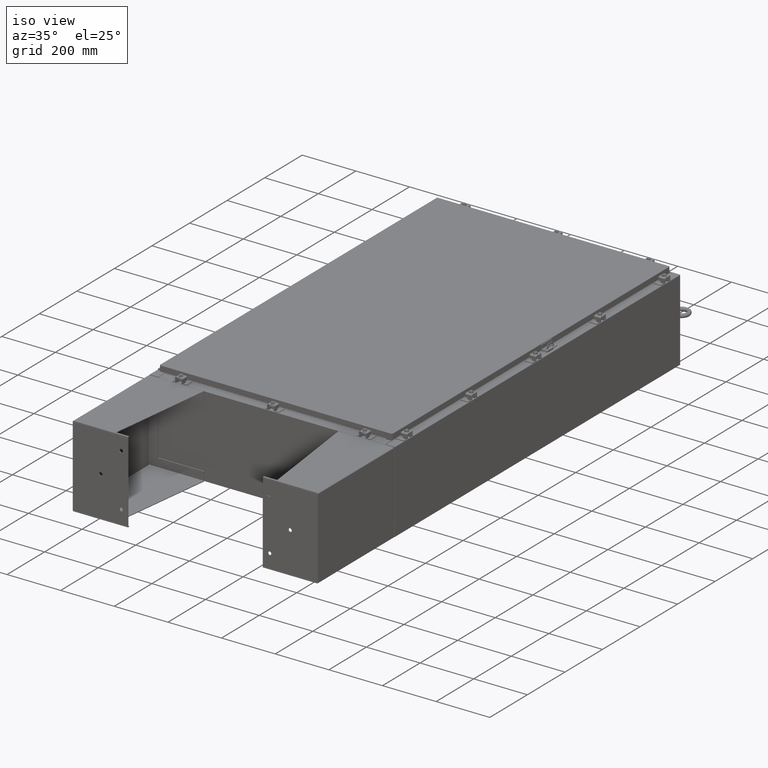
[diagram: clean part render]
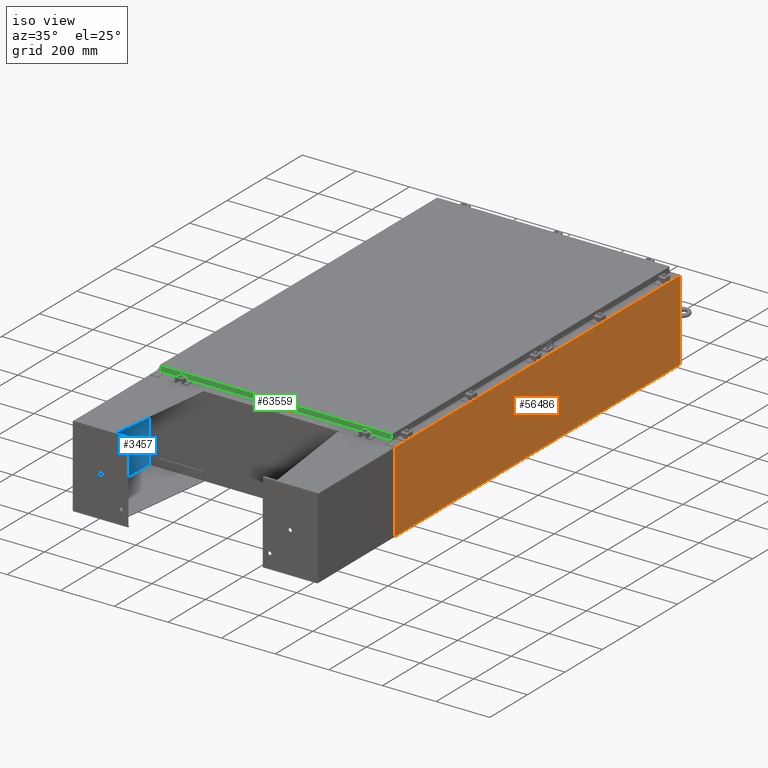
[diagram: same view with three faces highlighted in distinct colors, each labeled with its STEP entity id]
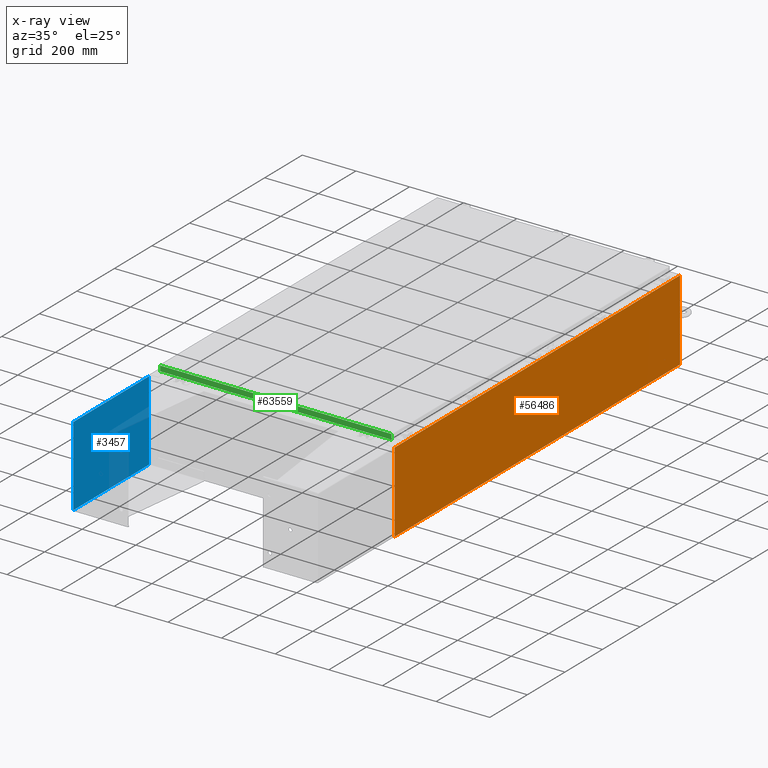
[diagram: x-ray of the same camera — body ghosted, the three highlighted faces saturated]
A machine part, iso view with three faces highlighted in distinct colors.
The next image is the same camera in x-ray (body ghosted, the three faces saturated) — at least one of them is partly hidden behind the body in this view.
Their STEP definitions:

[orange] entity #56486 — the highlighted planar face has unit normal (-1, 0, 0).
#2689 = CARTESIAN_POINT ( 'NONE',  ( 17.99999999999999600, -29.92530000000001100, 0.01299999999999984700 ) ) ;
#4061 = ORIENTED_EDGE ( 'NONE', *, *, #53382, .F. ) ;
#4415 = CARTESIAN_POINT ( 'NONE',  ( 17.99999999999999600, -29.92530000000001100, -6.293710784286996200E-014 ) ) ;
#6453 = VERTEX_POINT ( 'NONE', #51275 ) ;
#10930 = VERTEX_POINT ( 'NONE', #32612 ) ;
#14541 = AXIS2_PLACEMENT_3D ( 'NONE', #23617, #65396, #34182 ) ;
#16167 = CARTESIAN_POINT ( 'NONE',  ( 17.99999999999999600, 29.92529999999998900, -6.293710784286996200E-014 ) ) ;
#17552 = VECTOR ( 'NONE', #57609, 39.37007874015748100 ) ;
#20445 = EDGE_CURVE ( 'NONE', #36987, #10930, #62705, .T. ) ;
#20918 = EDGE_LOOP ( 'NONE', ( #56480, #40544, #4061, #24936 ) ) ;
#20989 = VECTOR ( 'NONE', #58051, 39.37007874015748100 ) ;
#22061 = EDGE_CURVE ( 'NONE', #10930, #6453, #39654, .T. ) ;
#23617 = CARTESIAN_POINT ( 'NONE',  ( 17.99999999999999600, 0.0000000000000000000, -6.293710784286996200E-014 ) ) ;
#24048 = VECTOR ( 'NONE', #49899, 39.37007874015748100 ) ;
#24936 = ORIENTED_EDGE ( 'NONE', *, *, #20445, .T. ) ;
#26269 = VECTOR ( 'NONE', #46416, 39.37007874015748100 ) ;
#31850 = CARTESIAN_POINT ( 'NONE',  ( 17.99999999999999600, 29.92529999999999300, 0.01299999999999984700 ) ) ;
#32612 = CARTESIAN_POINT ( 'NONE',  ( 18.00000000000003900, 29.92529999999999300, 11.83760000000000200 ) ) ;
#34182 = DIRECTION ( 'NONE',  ( 3.482016343714355100E-015, 0.0000000000000000000, 1.000000000000000000 ) ) ;
#36690 = CARTESIAN_POINT ( 'NONE',  ( 17.99999999999999600, -29.92530000000001100, 0.01299999999999984700 ) ) ;
#36987 = VERTEX_POINT ( 'NONE', #31850 ) ;
#39654 = LINE ( 'NONE', #41295, #24048 ) ;
#40544 = ORIENTED_EDGE ( 'NONE', *, *, #63009, .T. ) ;
#41295 = CARTESIAN_POINT ( 'NONE',  ( 18.00000000000003900, 29.92529999999999300, 11.83760000000000200 ) ) ;
#46416 = DIRECTION ( 'NONE',  ( -3.482016343714355500E-015, 0.0000000000000000000, -1.000000000000000000 ) ) ;
#49747 = PLANE ( 'NONE',  #14541 ) ;
#49899 = DIRECTION ( 'NONE',  ( -0.0000000000000000000, -1.000000000000000000, -0.0000000000000000000 ) ) ;
#51275 = CARTESIAN_POINT ( 'NONE',  ( 18.00000000000003900, -29.92530000000001100, 11.83760000000000200 ) ) ;
#53382 = EDGE_CURVE ( 'NONE', #36987, #62523, #62566, .T. ) ;
#56480 = ORIENTED_EDGE ( 'NONE', *, *, #22061, .T. ) ;
#56486 = ADVANCED_FACE ( 'NONE', ( #67358 ), #49747, .F. ) ;
#57609 = DIRECTION ( 'NONE',  ( -0.0000000000000000000, -1.000000000000000000, -0.0000000000000000000 ) ) ;
#58051 = DIRECTION ( 'NONE',  ( 3.482016343714355500E-015, 0.0000000000000000000, 1.000000000000000000 ) ) ;
#62523 = VERTEX_POINT ( 'NONE', #36690 ) ;
#62566 = LINE ( 'NONE', #2689, #17552 ) ;
#62705 = LINE ( 'NONE', #16167, #20989 ) ;
#63009 = EDGE_CURVE ( 'NONE', #6453, #62523, #66273, .T. ) ;
#65396 = DIRECTION ( 'NONE',  ( -1.000000000000000000, 0.0000000000000000000, 3.482016343714355100E-015 ) ) ;
#66273 = LINE ( 'NONE', #4415, #26269 ) ;
#67358 = FACE_OUTER_BOUND ( 'NONE', #20918, .T. ) ;

[blue] entity #3457 — the highlighted planar face has unit normal (-1, 0, -0).
#1813 = FACE_OUTER_BOUND ( 'NONE', #21977, .T. ) ;
#3457 = ADVANCED_FACE ( 'NONE', ( #1813 ), #57532, .F. ) ;
#3559 = LINE ( 'NONE', #55586, #56001 ) ;
#9553 = CARTESIAN_POINT ( 'NONE',  ( -6.000000000000000900, -7.999999999999999100, 0.0000000000000000000 ) ) ;
#10697 = VERTEX_POINT ( 'NONE', #35760 ) ;
#11401 = LINE ( 'NONE', #59037, #39374 ) ;
#16280 = VECTOR ( 'NONE', #20123, 39.37007874015748100 ) ;
#17965 = LINE ( 'NONE', #9553, #16280 ) ;
#19111 = ORIENTED_EDGE ( 'NONE', *, *, #29164, .T. ) ;
#20123 = DIRECTION ( 'NONE',  ( 1.000000000000000000, 0.0000000000000000000, 0.0000000000000000000 ) ) ;
#21630 = ORIENTED_EDGE ( 'NONE', *, *, #38231, .F. ) ;
#21930 = VECTOR ( 'NONE', #22329, 39.37007874015748100 ) ;
#21977 = EDGE_LOOP ( 'NONE', ( #65199, #21630, #19111, #35040 ) ) ;
#22329 = DIRECTION ( 'NONE',  ( -0.0000000000000000000, -1.000000000000000000, -0.0000000000000000000 ) ) ;
#24496 = VERTEX_POINT ( 'NONE', #61640 ) ;
#25093 = VERTEX_POINT ( 'NONE', #39543 ) ;
#29164 = EDGE_CURVE ( 'NONE', #62117, #25093, #17965, .T. ) ;
#30404 = EDGE_CURVE ( 'NONE', #10697, #25093, #63648, .T. ) ;
#34653 = DIRECTION ( 'NONE',  ( 1.000000000000000000, 0.0000000000000000000, 0.0000000000000000000 ) ) ;
#35040 = ORIENTED_EDGE ( 'NONE', *, *, #30404, .F. ) ;
#35760 = CARTESIAN_POINT ( 'NONE',  ( 5.857000000000000200, 7.857000000000001100, 1.365923996832131600E-016 ) ) ;
#38211 = DIRECTION ( 'NONE',  ( 0.0000000000000000000, 0.0000000000000000000, -1.000000000000000000 ) ) ;
#38231 = EDGE_CURVE ( 'NONE', #62117, #24496, #11401, .T. ) ;
#39374 = VECTOR ( 'NONE', #64297, 39.37007874015748100 ) ;
#39543 = CARTESIAN_POINT ( 'NONE',  ( 5.857000000000000200, -7.999999999999997300, 1.365923996832131600E-016 ) ) ;
#39971 = DIRECTION ( 'NONE',  ( -1.000000000000000000, 0.0000000000000000000, -0.0000000000000000000 ) ) ;
#43146 = CARTESIAN_POINT ( 'NONE',  ( 5.857000000000000200, 8.000000000000001800, 1.365923996832131600E-016 ) ) ;
#43982 = CARTESIAN_POINT ( 'NONE',  ( -5.857000000000000200, -8.000000000000000000, 1.365923996832131600E-016 ) ) ;
#49719 = AXIS2_PLACEMENT_3D ( 'NONE', #51400, #38211, #39971 ) ;
#51400 = CARTESIAN_POINT ( 'NONE',  ( 5.999999999999996400, 8.000000000000001800, 0.0000000000000000000 ) ) ;
#55045 = EDGE_CURVE ( 'NONE', #24496, #10697, #3559, .T. ) ;
#55586 = CARTESIAN_POINT ( 'NONE',  ( -5.857000000000000200, 7.857000000000001100, 1.365923996832131600E-016 ) ) ;
#56001 = VECTOR ( 'NONE', #34653, 39.37007874015748100 ) ;
#57532 = PLANE ( 'NONE',  #49719 ) ;
#59037 = CARTESIAN_POINT ( 'NONE',  ( -5.857000000000000200, -7.999999999999999100, 1.365923996832131600E-016 ) ) ;
#61640 = CARTESIAN_POINT ( 'NONE',  ( -5.857000000000000200, 7.857000000000001100, 1.365923996832131600E-016 ) ) ;
#62117 = VERTEX_POINT ( 'NONE', #43982 ) ;
#63648 = LINE ( 'NONE', #43146, #21930 ) ;
#64297 = DIRECTION ( 'NONE',  ( -0.0000000000000000000, 1.000000000000000000, -0.0000000000000000000 ) ) ;
#65199 = ORIENTED_EDGE ( 'NONE', *, *, #55045, .F. ) ;

[green] entity #63559 — the highlighted planar face has unit normal (-0, 1, -0).
#2288 = VERTEX_POINT ( 'NONE', #51985 ) ;
#2533 = CARTESIAN_POINT ( 'NONE',  ( 16.23915786437626400, -29.09400000000000800, -0.8499999999999994200 ) ) ;
#3418 = EDGE_CURVE ( 'NONE', #2288, #20609, #17403, .T. ) ;
#4365 = EDGE_CURVE ( 'NONE', #20609, #19704, #67220, .T. ) ;
#5530 = LINE ( 'NONE', #46005, #59588 ) ;
#6230 = CARTESIAN_POINT ( 'NONE',  ( 17.07800000000000300, -29.09400000000000100, -0.08769999999999547600 ) ) ;
#9456 = LINE ( 'NONE', #63140, #63509 ) ;
#9493 = DIRECTION ( 'NONE',  ( -1.000000000000000000, -0.0000000000000000000, 1.239713195391617100E-016 ) ) ;
#10716 = ORIENTED_EDGE ( 'NONE', *, *, #3418, .F. ) ;
#11024 = EDGE_CURVE ( 'NONE', #54071, #50462, #12277, .T. ) ;
#11030 = PLANE ( 'NONE',  #63048 ) ;
#11531 = VECTOR ( 'NONE', #31493, 39.37007874015748100 ) ;
#12277 = LINE ( 'NONE', #39641, #38652 ) ;
#12338 = CARTESIAN_POINT ( 'NONE',  ( 16.98915786437627100, -29.09400000000000100, -0.08769999999999549000 ) ) ;
#13460 = EDGE_CURVE ( 'NONE', #2288, #50462, #9456, .T. ) ;
#15126 = CARTESIAN_POINT ( 'NONE',  ( 16.23915786437626400, -29.09400000000000800, -0.8499999999999994200 ) ) ;
#16305 = DIRECTION ( 'NONE',  ( -6.989207801985715000E-031, 1.000000000000000000, -5.637761885544721100E-015 ) ) ;
#16558 = CARTESIAN_POINT ( 'NONE',  ( -16.23915786437626000, -29.09400000000000800, -0.8499999999999994200 ) ) ;
#17403 = LINE ( 'NONE', #6230, #57499 ) ;
#17836 = LINE ( 'NONE', #2533, #28536 ) ;
#19704 = VERTEX_POINT ( 'NONE', #44792 ) ;
#20609 = VERTEX_POINT ( 'NONE', #12338 ) ;
#21440 = DIRECTION ( 'NONE',  ( -1.000000000000000000, -0.0000000000000000000, 1.239713195391617100E-016 ) ) ;
#21586 = ORIENTED_EDGE ( 'NONE', *, *, #39168, .F. ) ;
#25148 = EDGE_LOOP ( 'NONE', ( #10716, #36600, #50753, #53875, #21586, #39954 ) ) ;
#27559 = CARTESIAN_POINT ( 'NONE',  ( -16.98915786437626700, -29.09400000000000500, -0.8499999999999954300 ) ) ;
#28536 = VECTOR ( 'NONE', #65488, 39.37007874015748100 ) ;
#30259 = EDGE_CURVE ( 'NONE', #38049, #54071, #17836, .T. ) ;
#31493 = DIRECTION ( 'NONE',  ( -0.0000000000000000000, -5.637761885544721800E-015, -1.000000000000000000 ) ) ;
#36600 = ORIENTED_EDGE ( 'NONE', *, *, #13460, .T. ) ;
#38049 = VERTEX_POINT ( 'NONE', #15126 ) ;
#38652 = VECTOR ( 'NONE', #21440, 39.37007874015748100 ) ;
#39054 = DIRECTION ( 'NONE',  ( 0.0000000000000000000, -5.637761885544721800E-015, -1.000000000000000000 ) ) ;
#39168 = EDGE_CURVE ( 'NONE', #19704, #38049, #5530, .T. ) ;
#39641 = CARTESIAN_POINT ( 'NONE',  ( 17.07800000000000300, -29.09400000000000500, -0.8499999999999996400 ) ) ;
#39954 = ORIENTED_EDGE ( 'NONE', *, *, #4365, .F. ) ;
#44792 = CARTESIAN_POINT ( 'NONE',  ( 16.98915786437627100, -29.09400000000000500, -0.8499999999999996400 ) ) ;
#44969 = DIRECTION ( 'NONE',  ( 1.000000000000000000, 6.989207801985715800E-031, -3.922586267643549700E-045 ) ) ;
#46005 = CARTESIAN_POINT ( 'NONE',  ( 17.07800000000000300, -29.09400000000000500, -0.8499999999999996400 ) ) ;
#47807 = CARTESIAN_POINT ( 'NONE',  ( 2.033440117909723900E-029, -29.09400000000000100, 1.642858579540496700E-013 ) ) ;
#48480 = CARTESIAN_POINT ( 'NONE',  ( 16.98915786437627100, -29.09400000000000100, -0.07469999999999958600 ) ) ;
#50462 = VERTEX_POINT ( 'NONE', #27559 ) ;
#50753 = ORIENTED_EDGE ( 'NONE', *, *, #11024, .F. ) ;
#51985 = CARTESIAN_POINT ( 'NONE',  ( -16.98915786437626700, -29.09400000000000100, -0.08769999999999547600 ) ) ;
#53036 = DIRECTION ( 'NONE',  ( 0.0000000000000000000, 5.637761885544721100E-015, 1.000000000000000000 ) ) ;
#53204 = FACE_OUTER_BOUND ( 'NONE', #25148, .T. ) ;
#53875 = ORIENTED_EDGE ( 'NONE', *, *, #30259, .F. ) ;
#54071 = VERTEX_POINT ( 'NONE', #16558 ) ;
#57499 = VECTOR ( 'NONE', #44969, 39.37007874015748100 ) ;
#59588 = VECTOR ( 'NONE', #9493, 39.37007874015748100 ) ;
#63048 = AXIS2_PLACEMENT_3D ( 'NONE', #47807, #16305, #53036 ) ;
#63140 = CARTESIAN_POINT ( 'NONE',  ( -16.98915786437626700, -29.09400000000000100, 1.642858579540496700E-013 ) ) ;
#63509 = VECTOR ( 'NONE', #39054, 39.37007874015748100 ) ;
#63559 = ADVANCED_FACE ( 'NONE', ( #53204 ), #11030, .F. ) ;
#65488 = DIRECTION ( 'NONE',  ( -1.000000000000000000, 0.0000000000000000000, 0.0000000000000000000 ) ) ;
#67220 = LINE ( 'NONE', #48480, #11531 ) ;